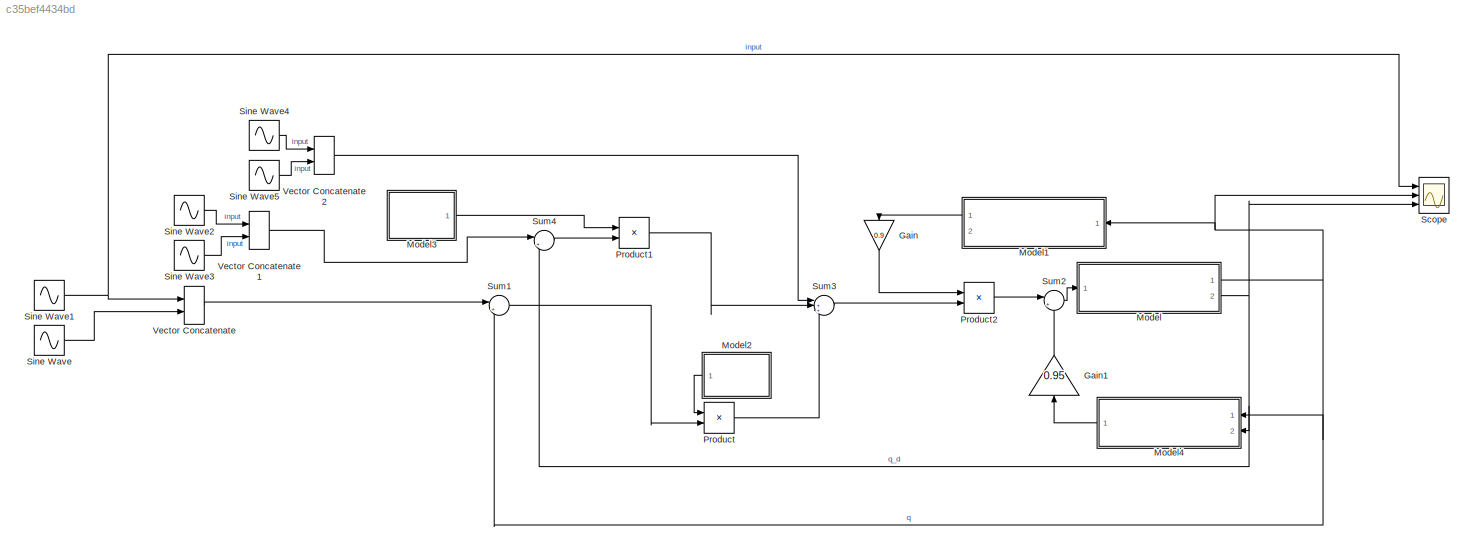
MODEL slx_c35bef4434bd
KIND model
CONFIG AbsTol = auto
CONFIG EnableMultiTasking = off
CONFIG FixedStep = auto
CONFIG MaxStep = auto
CONFIG MinStep = auto
CONFIG RelTol = 1e-3
CONFIG SampleTimeConstraint = Unconstrained
CONFIG SolverName = VariableStepAuto
CONFIG StartTime = 0.0
CONFIG StopTime = 10.0
BLOCK [Gain] Gain
  Gain = 0.9
  NameLocation = left
BLOCK [Gain] Gain1
  Gain = 0.95
  NameLocation = right
BLOCK [ModelReference] Model
  ModelNameDialog = two_link_model.slx
  ModelReferenceVersion = 1.3
  Ports = [1, 2]
BLOCK [ModelReference] Model1
  ModelNameDialog = B_sim_matrix.slx
  ModelReferenceVersion = 1.6
  NameLocation = top
  Ports = [1, 2]
BLOCK [ModelReference] Model2
  ModelNameDialog = Kp_matrix.slx
  ModelReferenceVersion = 1.3
  Ports = [0, 1]
BLOCK [ModelReference] Model3
  ModelNameDialog = Kd_matrix.slx
  ModelReferenceVersion = 1.2
  Ports = [0, 1]
BLOCK [ModelReference] Model4
  ModelNameDialog = n_vector.slx
  ModelReferenceVersion = 1.3
  PortSchema = {"entries":[{"content":{"sides":[{"content":{"connectorIds":["In2","In1"]},"type":"ConnectorPlacement.EquallySpacedRectSide","uuid":"0004a852-6b57-412e-a247-f7a948c02aef"},{"content":{"connectorIds":["Out1"],"side":"RIGHT"},"type":"ConnectorPlacement.EquallySpacedRectSide","uuid":"2c6a1f56-b264-4a50-8175-f4e8d5862eda"},{"content":{"connectorIds":[],"side":"TOP"},"type":"ConnectorPlacement.EquallyS...<+246ch>
  Ports = [2, 1]
BLOCK [Product] Product
  Multiplication = Matrix(*)
  Ports = [2, 1]
BLOCK [Product] Product1
  Multiplication = Matrix(*)
  Ports = [2, 1]
BLOCK [Product] Product2
  Multiplication = Matrix(*)
  Ports = [2, 1]
BLOCK [Scope] Scope
  Floating = off
  NumInputPorts = 3
  Ports = [3]
  ScopeSpecificationString = Simulink.scopes.TimeScopeBlockCfg('CurrentConfiguration', extmgr.ConfigurationSet(extmgr.Configuration('Core','General UI',true),extmgr.Configuration('Core','Source UI',true),extmgr.Configuration('Sources','WiredSimulink',true),extmgr.Configuration('Visuals','Time Domain',true,'SerializedDisplays',{struct('MinYLimReal','-16.13384','MaxYLimReal','16.13828','YLabelReal','','MinYLimMag','0.00000','Ma...<+1499ch>
BLOCK [Sin] Sine Wave
  Frequency = f
  Ports = [0, 1]
  SampleTime = 0.01
BLOCK [Sin] Sine Wave1
  Frequency = f
  Ports = [0, 1]
  SampleTime = 0.01
BLOCK [Sin] Sine Wave2
  Amplitude = 2*pi*f
  Frequency = f
  Phase = pi/2
  Ports = [0, 1]
  SampleTime = 0.01
BLOCK [Sin] Sine Wave3
  Amplitude = 2*pi*f
  Frequency = f
  Phase = pi/2
  Ports = [0, 1]
  SampleTime = 0.01
BLOCK [Sin] Sine Wave4
  Amplitude = -(2*pi*f)^2
  Frequency = f
  Ports = [0, 1]
  SampleTime = 0.01
BLOCK [Sin] Sine Wave5
  Amplitude = -(2*pi*f)^2
  Frequency = f
  Ports = [0, 1]
  SampleTime = 0.01
BLOCK [Sum] Sum1
  Inputs = |+-
  Ports = [2, 1]
BLOCK [Sum] Sum2
  Inputs = |++
  Ports = [2, 1]
BLOCK [Sum] Sum3
  Inputs = |+++
  Ports = [3, 1]
BLOCK [Sum] Sum4
  Inputs = |+-
  Ports = [2, 1]
BLOCK [Concatenate] Vector Concatenate
  Ports = [2, 1]
BLOCK [Concatenate] Vector Concatenate1
  Ports = [2, 1]
BLOCK [Concatenate] Vector Concatenate2
  Ports = [2, 1]
LINE Gain1:1 -> Sum2:2
LINE Gain:1 -> Product2:1
LINE Model1:1 -> Gain:1
LINE Model2:1 -> Product:1
LINE Model3:1 -> Product1:1
LINE Model4:1 -> Gain1:1
NET Model:1 -> Model1:1, Model4:1, Scope:2, Sum1:2
NET Model:2 -> Model4:2, Scope:3, Sum4:2
LINE Product1:1 -> Sum3:2
LINE Product2:1 -> Sum2:1
LINE Product:1 -> Sum3:3
NET Sine Wave1:1 -> Scope:1, Vector Concatenate:1
LINE Sine Wave2:1 -> Vector Concatenate1:1
LINE Sine Wave3:1 -> Vector Concatenate1:2
LINE Sine Wave4:1 -> Vector Concatenate2:1
LINE Sine Wave5:1 -> Vector Concatenate2:2
LINE Sine Wave:1 -> Vector Concatenate:2
LINE Sum1:1 -> Product:2
LINE Sum2:1 -> Model:1
LINE Sum3:1 -> Product2:2
LINE Sum4:1 -> Product1:2
LINE Vector Concatenate1:1 -> Sum4:1
LINE Vector Concatenate2:1 -> Sum3:1
LINE Vector Concatenate:1 -> Sum1:1
note: NET lines group one-source signal fan-out (src -> all destinations, sorted); 1:1 wires keep LINE
